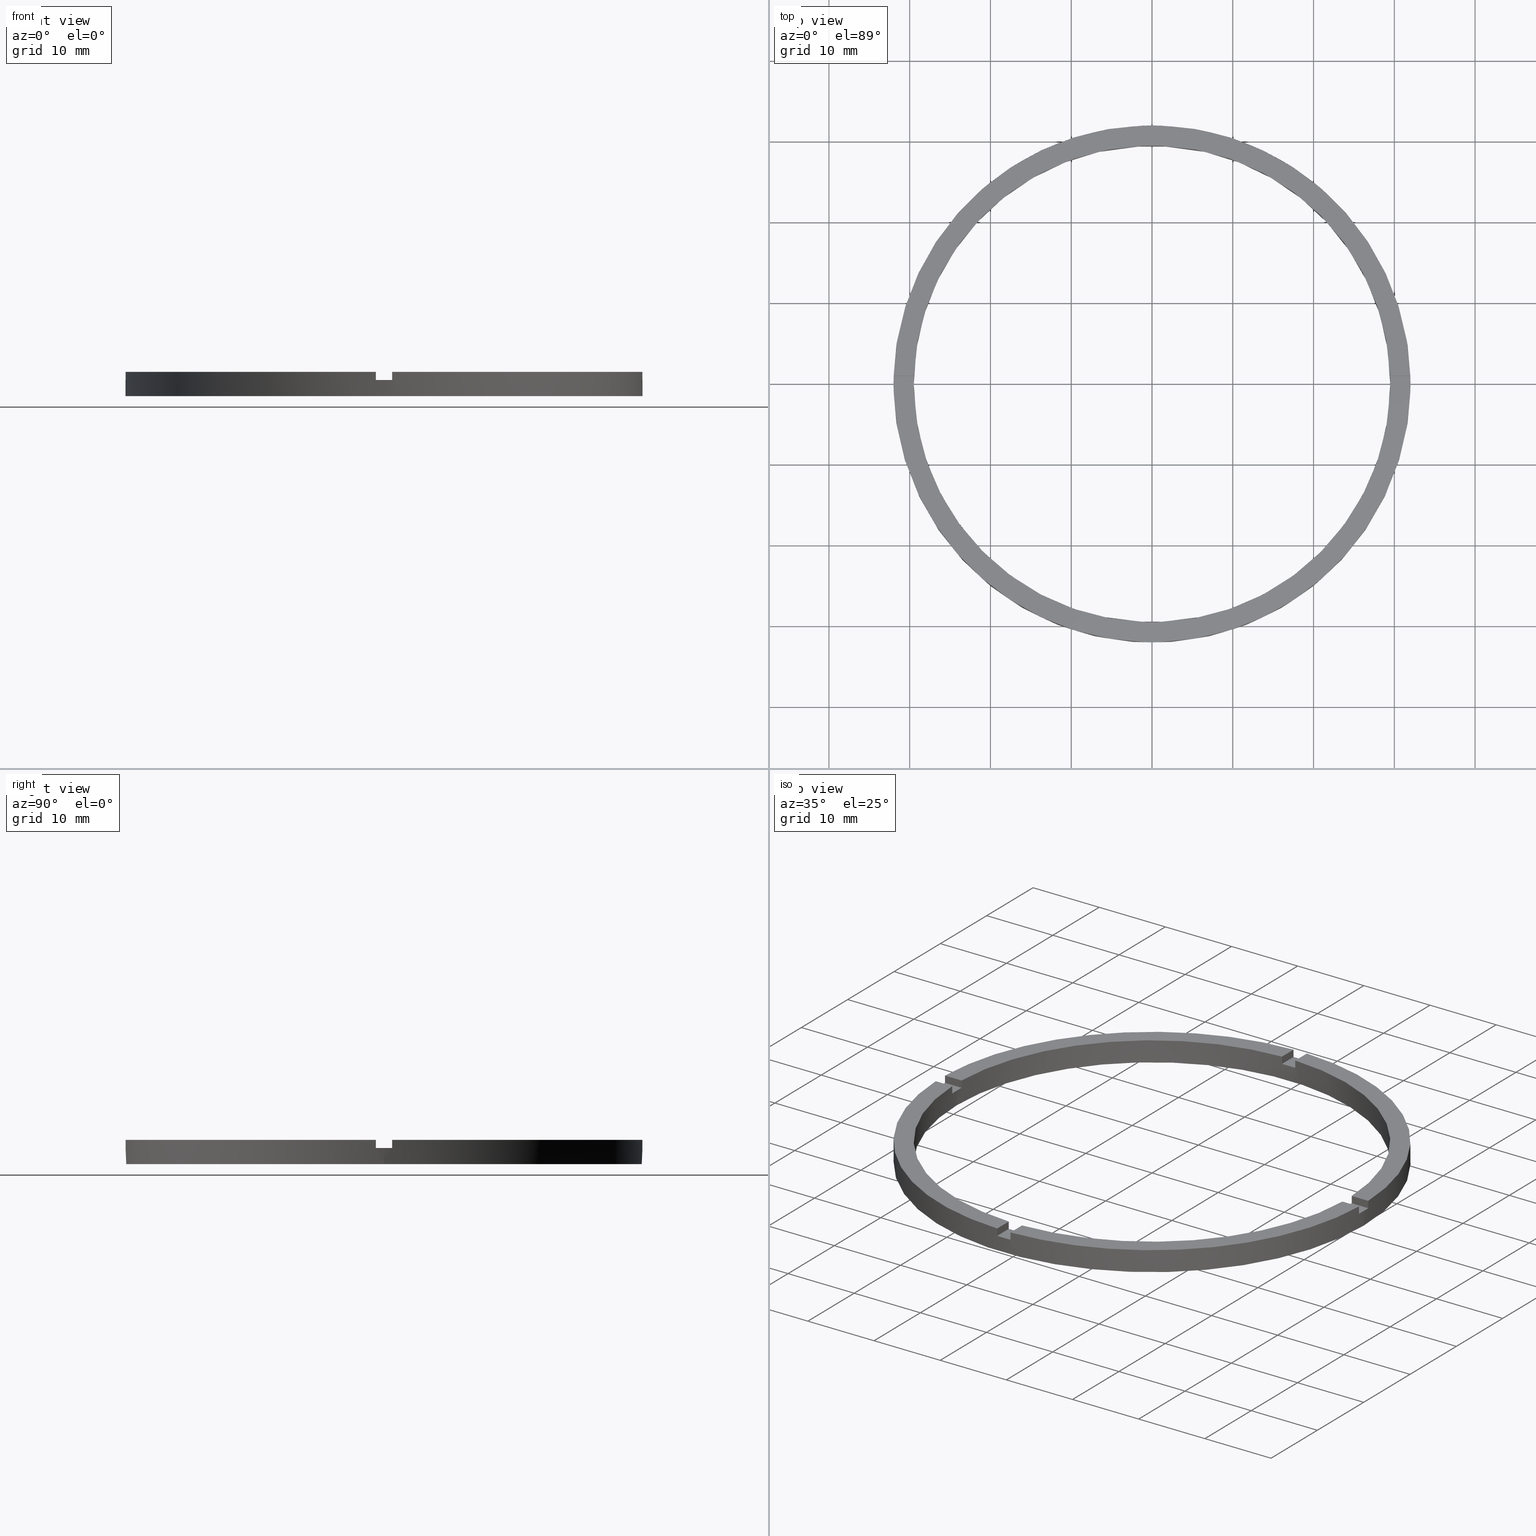
[diagram: canonical four-view strip — front | top / right | iso, engineering-drawing reading convention]
A machine part, canonical four-view strip (front | top / right | iso — engineering-drawing reading convention). The complete STEP part file that produces these views, byte-faithful:
ISO-10303-21;
HEADER;
FILE_DESCRIPTION (( 'STEP AP203' ),
    '1' );
FILE_NAME ('514133.step',
    '2024-12-26T02:40:41',
    ( 'MSI' ),
    ( '' ),
    'SwSTEP 2.0',
    'SolidWorks 2020',
    '' );
FILE_SCHEMA (( 'CONFIG_CONTROL_DESIGN' ));
ENDSEC;

DATA;
#1 = ORIENTED_EDGE ( 'NONE', *, *, #61, .T. ) ;
#2 = LINE ( 'NONE', #253, #783 ) ;
#3 = ORIENTED_EDGE ( 'NONE', *, *, #691, .T. ) ;
#4 = VERTEX_POINT ( 'NONE', #572 ) ;
#5 = VECTOR ( 'NONE', #86, 1000.000000000000000 ) ;
#6 = CC_DESIGN_SECURITY_CLASSIFICATION ( #77, ( #589 ) ) ;
#7 = ORIENTED_EDGE ( 'NONE', *, *, #714, .T. ) ;
#8 = ORIENTED_EDGE ( 'NONE', *, *, #365, .T. ) ;
#9 = DIRECTION ( 'NONE',  ( 1.000000000000000000, 0.000000000000000000, -0.000000000000000000 ) ) ;
#10 = VECTOR ( 'NONE', #338, 1000.000000000000000 ) ;
#11 = DIRECTION ( 'NONE',  ( 0.000000000000000000, 0.000000000000000000, 1.000000000000000000 ) ) ;
#12 = ORIENTED_EDGE ( 'NONE', *, *, #119, .F. ) ;
#13 = EDGE_LOOP ( 'NONE', ( #425, #191, #180, #406 ) ) ;
#14 = CYLINDRICAL_SURFACE ( 'NONE', #702, 32.00000000000000000 ) ;
#15 = ORIENTED_EDGE ( 'NONE', *, *, #356, .T. ) ;
#16 = PERSON_AND_ORGANIZATION_ROLE ( 'creator' ) ;
#17 = LINE ( 'NONE', #426, #536 ) ;
#18 = LINE ( 'NONE', #432, #5 ) ;
#19 = DIRECTION ( 'NONE',  ( 1.301042606982605074E-16, -1.000000000000000000, 0.000000000000000000 ) ) ;
#20 = CIRCLE ( 'NONE', #585, 32.00000000000000000 ) ;
#21 = AXIS2_PLACEMENT_3D ( 'NONE', #626, #538, #677 ) ;
#22 = DIRECTION ( 'NONE',  ( -0.000000000000000000, -0.000000000000000000, -1.000000000000000000 ) ) ;
#23 = APPROVAL ( #459, 'δָ��' ) ;
#24 = FACE_OUTER_BOUND ( 'NONE', #436, .T. ) ;
#25 = CC_DESIGN_PERSON_AND_ORGANIZATION_ASSIGNMENT ( #212, #159, ( #589 ) ) ;
#26 = FACE_OUTER_BOUND ( 'NONE', #214, .T. ) ;
#27 = AXIS2_PLACEMENT_3D ( 'NONE', #194, #377, #628 ) ;
#28 = EDGE_CURVE ( 'NONE', #492, #4, #402, .T. ) ;
#29 = CIRCLE ( 'NONE', #270, 29.50000000000000355 ) ;
#30 = ORIENTED_EDGE ( 'NONE', *, *, #242, .T. ) ;
#31 = DIRECTION ( 'NONE',  ( 1.951563910473908228E-16, -1.000000000000000000, 0.000000000000000000 ) ) ;
#32 = FACE_OUTER_BOUND ( 'NONE', #157, .T. ) ;
#33 = CIRCLE ( 'NONE', #21, 32.00000000000000000 ) ;
#34 = CARTESIAN_POINT ( 'NONE',  ( 0.9999999999998375744, -22.00000000000017764, 2.000000000000000000 ) ) ;
#35 = ORIENTED_EDGE ( 'NONE', *, *, #543, .T. ) ;
#36 = FACE_OUTER_BOUND ( 'NONE', #506, .T. ) ;
#37 = VERTEX_POINT ( 'NONE', #202 ) ;
#38 = FACE_OUTER_BOUND ( 'NONE', #382, .T. ) ;
#39 = EDGE_LOOP ( 'NONE', ( #252, #778, #754, #113, #294, #8 ) ) ;
#40 = FACE_OUTER_BOUND ( 'NONE', #480, .T. ) ;
#41 = DIRECTION ( 'NONE',  ( 0.000000000000000000, 0.000000000000000000, 1.000000000000000000 ) ) ;
#42 = CARTESIAN_POINT ( 'NONE',  ( 0.000000000000000000, 0.000000000000000000, 2.000000000000000000 ) ) ;
#43 = CARTESIAN_POINT ( 'NONE',  ( 0.9999999999999754641, 29.48304597561114093, 3.000000000000000000 ) ) ;
#44 = COORDINATED_UNIVERSAL_TIME_OFFSET ( 8, 0, .AHEAD. ) ;
#45 = PLANE ( 'NONE',  #297 ) ;
#46 = CARTESIAN_POINT ( 'NONE',  ( 0.9999999999998386846, -29.48304597561114448, 2.000000000000000000 ) ) ;
#47 = CALENDAR_DATE ( 2024, 26, 12 ) ;
#48 = EDGE_CURVE ( 'NONE', #556, #306, #429, .T. ) ;
#49 = DIRECTION ( 'NONE',  ( 0.000000000000000000, 0.000000000000000000, 1.000000000000000000 ) ) ;
#50 = CARTESIAN_POINT ( 'NONE',  ( 29.50000000000000355, 3.612708057484692393E-15, 2.000000000000000000 ) ) ;
#51 = DIRECTION ( 'NONE',  ( 1.000000000000000000, 0.000000000000000000, 0.000000000000000000 ) ) ;
#52 = CIRCLE ( 'NONE', #58, 29.50000000000000355 ) ;
#53 = LINE ( 'NONE', #724, #577 ) ;
#54 = DIRECTION ( 'NONE',  ( 1.000000000000000000, 0.000000000000000000, -0.000000000000000000 ) ) ;
#55 = DIRECTION ( 'NONE',  ( 1.000000000000000000, 0.000000000000000000, 0.000000000000000000 ) ) ;
#56 = FACE_OUTER_BOUND ( 'NONE', #160, .T. ) ;
#57 = CARTESIAN_POINT ( 'NONE',  ( 0.000000000000000000, 0.000000000000000000, 2.000000000000000000 ) ) ;
#58 = AXIS2_PLACEMENT_3D ( 'NONE', #82, #720, #192 ) ;
#59 = AXIS2_PLACEMENT_3D ( 'NONE', #688, #596, #766 ) ;
#60 = CARTESIAN_POINT ( 'NONE',  ( 0.000000000000000000, 0.000000000000000000, 2.000000000000000000 ) ) ;
#61 = EDGE_CURVE ( 'NONE', #210, #162, #693, .T. ) ;
#62 = DIRECTION ( 'NONE',  ( 1.000000000000000000, 0.000000000000000000, 0.000000000000000000 ) ) ;
#63 = EDGE_CURVE ( 'NONE', #523, #689, #697, .T. ) ;
#64 = DIRECTION ( 'NONE',  ( 1.000000000000000000, 0.000000000000000000, 0.000000000000000000 ) ) ;
#65 = CARTESIAN_POINT ( 'NONE',  ( 0.000000000000000000, 0.000000000000000000, 2.000000000000000000 ) ) ;
#66 = CARTESIAN_POINT ( 'NONE',  ( 0.000000000000000000, 0.000000000000000000, 3.000000000000000000 ) ) ;
#67 = AXIS2_PLACEMENT_3D ( 'NONE', #586, #49, #130 ) ;
#68 = DIRECTION ( 'NONE',  ( 0.000000000000000000, 0.000000000000000000, 1.000000000000000000 ) ) ;
#69 = DIRECTION ( 'NONE',  ( 0.000000000000000000, 0.000000000000000000, 1.000000000000000000 ) ) ;
#70 = ADVANCED_FACE ( 'NONE', ( #175 ), #139, .F. ) ;
#71 =( NAMED_UNIT ( * ) PLANE_ANGLE_UNIT ( ) SI_UNIT ( $, .RADIAN. ) );
#72 = DIRECTION ( 'NONE',  ( 1.000000000000000000, 0.000000000000000000, 0.000000000000000000 ) ) ;
#73 = PERSON ( 'δָ��', 'δָ��', 'δָ��', ('δָ��'), ('δָ��'), ('δָ��') ) ;
#74 = DIRECTION ( 'NONE',  ( 1.000000000000000000, 1.951563910473908228E-16, -0.000000000000000000 ) ) ;
#75 = EDGE_CURVE ( 'NONE', #743, #715, #147, .T. ) ;
#76 = ADVANCED_FACE ( 'NONE', ( #413 ), #576, .T. ) ;
#77 = SECURITY_CLASSIFICATION ( '', '', #599 ) ;
#78 = CARTESIAN_POINT ( 'NONE',  ( 0.9999999999999754641, 29.48304597561114093, 3.000000000000000000 ) ) ;
#79 = EDGE_CURVE ( 'NONE', #484, #120, #665, .T. ) ;
#80 = DIRECTION ( 'NONE',  ( 0.000000000000000000, 0.000000000000000000, 1.000000000000000000 ) ) ;
#81 = ADVANCED_FACE ( 'NONE', ( #668 ), #45, .F. ) ;
#82 = CARTESIAN_POINT ( 'NONE',  ( 0.000000000000000000, 0.000000000000000000, 3.000000000000000000 ) ) ;
#83 = CARTESIAN_POINT ( 'NONE',  ( 0.9999999999999754641, 22.00000000000000000, 3.000000000000000000 ) ) ;
#84 = EDGE_CURVE ( 'NONE', #210, #186, #141, .T. ) ;
#85 = CARTESIAN_POINT ( 'NONE',  ( 31.98437118343895591, 0.9999999999998414602, 2.000000000000000000 ) ) ;
#86 = DIRECTION ( 'NONE',  ( 1.000000000000000000, 6.505213034913022906E-17, 0.000000000000000000 ) ) ;
#87 = EDGE_CURVE ( 'NONE', #204, #669, #181, .T. ) ;
#88 = DIRECTION ( 'NONE',  ( -1.000000000000000000, 0.000000000000000000, 0.000000000000000000 ) ) ;
#89 = DIRECTION ( 'NONE',  ( 0.000000000000000000, 0.000000000000000000, 1.000000000000000000 ) ) ;
#90 = DIRECTION ( 'NONE',  ( -0.000000000000000000, -0.000000000000000000, -1.000000000000000000 ) ) ;
#91 = AXIS2_PLACEMENT_3D ( 'NONE', #748, #341, #441 ) ;
#92 = DIRECTION ( 'NONE',  ( 0.000000000000000000, -0.000000000000000000, 1.000000000000000000 ) ) ;
#93 = DIRECTION ( 'NONE',  ( 0.000000000000000000, 0.000000000000000000, 1.000000000000000000 ) ) ;
#94 = CARTESIAN_POINT ( 'NONE',  ( 0.000000000000000000, 0.000000000000000000, 3.000000000000000000 ) ) ;
#95 = DIRECTION ( 'NONE',  ( 0.000000000000000000, 0.000000000000000000, 1.000000000000000000 ) ) ;
#96 = EDGE_CURVE ( 'NONE', #698, #689, #439, .T. ) ;
#97 = AXIS2_PLACEMENT_3D ( 'NONE', #334, #363, #183 ) ;
#98 = VECTOR ( 'NONE', #117, 1000.000000000000000 ) ;
#99 = DIRECTION ( 'NONE',  ( 0.000000000000000000, 0.000000000000000000, 1.000000000000000000 ) ) ;
#100 = CIRCLE ( 'NONE', #643, 29.50000000000000355 ) ;
#101 = CC_DESIGN_PERSON_AND_ORGANIZATION_ASSIGNMENT ( #477, #249, ( #77 ) ) ;
#102 = AXIS2_PLACEMENT_3D ( 'NONE', #584, #632, #51 ) ;
#103 = DIRECTION ( 'NONE',  ( -1.000000000000000000, -6.505213034913022906E-17, 0.000000000000000000 ) ) ;
#104 = DIRECTION ( 'NONE',  ( 0.000000000000000000, 0.000000000000000000, 1.000000000000000000 ) ) ;
#105 = LINE ( 'NONE', #615, #98 ) ;
#106 = ORIENTED_EDGE ( 'NONE', *, *, #703, .F. ) ;
#107 = DIRECTION ( 'NONE',  ( 1.000000000000000000, 0.000000000000000000, 0.000000000000000000 ) ) ;
#108 = MECHANICAL_CONTEXT ( 'NONE', #227, 'mechanical' ) ;
#109 = EDGE_CURVE ( 'NONE', #168, #669, #187, .T. ) ;
#110 = EDGE_CURVE ( 'NONE', #162, #684, #443, .T. ) ;
#111 = DIRECTION ( 'NONE',  ( -0.000000000000000000, -0.000000000000000000, -1.000000000000000000 ) ) ;
#112 = CARTESIAN_POINT ( 'NONE',  ( 31.98437118343894170, -1.000000000000158540, 2.000000000000000000 ) ) ;
#113 = ORIENTED_EDGE ( 'NONE', *, *, #116, .F. ) ;
#114 = DIRECTION ( 'NONE',  ( -0.000000000000000000, -0.000000000000000000, -1.000000000000000000 ) ) ;
#115 = ORIENTED_EDGE ( 'NONE', *, *, #136, .T. ) ;
#116 = EDGE_CURVE ( 'NONE', #698, #669, #705, .T. ) ;
#117 = DIRECTION ( 'NONE',  ( -0.000000000000000000, -0.000000000000000000, -1.000000000000000000 ) ) ;
#118 = DIRECTION ( 'NONE',  ( 1.000000000000000000, 0.000000000000000000, 0.000000000000000000 ) ) ;
#119 = EDGE_CURVE ( 'NONE', #424, #526, #189, .T. ) ;
#120 = VERTEX_POINT ( 'NONE', #481 ) ;
#121 = EDGE_LOOP ( 'NONE', ( #245, #132, #173, #230 ) ) ;
#122 = ORIENTED_EDGE ( 'NONE', *, *, #597, .F. ) ;
#123 = AXIS2_PLACEMENT_3D ( 'NONE', #232, #321, #352 ) ;
#124 = DIRECTION ( 'NONE',  ( -1.951563910473908228E-16, 1.000000000000000000, 0.000000000000000000 ) ) ;
#125 = CARTESIAN_POINT ( 'NONE',  ( -1.000000000000024425, 22.00000000000000000, 2.000000000000000000 ) ) ;
#126 = CC_DESIGN_DATE_AND_TIME_ASSIGNMENT ( #561, #701, ( #503 ) ) ;
#127 = CC_DESIGN_DATE_AND_TIME_ASSIGNMENT ( #251, #327, ( #77 ) ) ;
#128 = AXIS2_PLACEMENT_3D ( 'NONE', #125, #442, #593 ) ;
#129 = EDGE_CURVE ( 'NONE', #182, #166, #709, .T. ) ;
#130 = DIRECTION ( 'NONE',  ( 1.000000000000000000, 0.000000000000000000, 0.000000000000000000 ) ) ;
#131 = EDGE_CURVE ( 'NONE', #302, #700, #627, .T. ) ;
#132 = ORIENTED_EDGE ( 'NONE', *, *, #131, .T. ) ;
#133 = CARTESIAN_POINT ( 'NONE',  ( 0.000000000000000000, 0.000000000000000000, 3.000000000000000000 ) ) ;
#134 = EDGE_LOOP ( 'NONE', ( #165, #456, #275, #35, #552, #518, #548, #277, #238, #505, #115, #773 ) ) ;
#135 = PLANE ( 'NONE',  #750 ) ;
#136 = EDGE_CURVE ( 'NONE', #544, #523, #105, .T. ) ;
#137 = FACE_OUTER_BOUND ( 'NONE', #39, .T. ) ;
#138 = ORIENTED_EDGE ( 'NONE', *, *, #129, .T. ) ;
#139 = CYLINDRICAL_SURFACE ( 'NONE', #525, 29.50000000000000355 ) ;
#140 = VERTEX_POINT ( 'NONE', #337 ) ;
#141 = LINE ( 'NONE', #398, #151 ) ;
#142 = DIRECTION ( 'NONE',  ( -6.505213034913022906E-17, 1.000000000000000000, 0.000000000000000000 ) ) ;
#143 = ORIENTED_EDGE ( 'NONE', *, *, #328, .T. ) ;
#144 = DIRECTION ( 'NONE',  ( 1.000000000000000000, 0.000000000000000000, 0.000000000000000000 ) ) ;
#145 = CARTESIAN_POINT ( 'NONE',  ( 0.000000000000000000, 0.000000000000000000, 3.000000000000000000 ) ) ;
#146 = DIRECTION ( 'NONE',  ( 1.000000000000000000, 0.000000000000000000, 0.000000000000000000 ) ) ;
#147 = CIRCLE ( 'NONE', #602, 29.50000000000000355 ) ;
#148 = ORIENTED_EDGE ( 'NONE', *, *, #365, .F. ) ;
#149 = VERTEX_POINT ( 'NONE', #612 ) ;
#150 = DIRECTION ( 'NONE',  ( -0.000000000000000000, -0.000000000000000000, -1.000000000000000000 ) ) ;
#151 = VECTOR ( 'NONE', #608, 1000.000000000000000 ) ;
#152 = PRODUCT_DEFINITION_SHAPE ( 'NONE', 'NONE',  #503 ) ;
#153 = PLANE ( 'NONE',  #590 ) ;
#154 = ORIENTED_EDGE ( 'NONE', *, *, #336, .F. ) ;
#155 = ADVANCED_FACE ( 'NONE', ( #620 ), #366, .F. ) ;
#156 = CARTESIAN_POINT ( 'NONE',  ( 0.000000000000000000, 0.000000000000000000, 2.000000000000000000 ) ) ;
#157 = EDGE_LOOP ( 'NONE', ( #177, #122, #138, #661, #659, #231, #143, #198, #1, #454, #528, #417 ) ) ;
#158 = ORIENTED_EDGE ( 'NONE', *, *, #571, .F. ) ;
#159 = PERSON_AND_ORGANIZATION_ROLE ( 'design_supplier' ) ;
#160 = EDGE_LOOP ( 'NONE', ( #148, #781, #674, #775 ) ) ;
#161 = PLANE ( 'NONE',  #27 ) ;
#162 = VERTEX_POINT ( 'NONE', #617 ) ;
#163 = DIRECTION ( 'NONE',  ( 1.000000000000000000, 0.000000000000000000, -0.000000000000000000 ) ) ;
#164 = AXIS2_PLACEMENT_3D ( 'NONE', #254, #415, #490 ) ;
#165 = ORIENTED_EDGE ( 'NONE', *, *, #96, .F. ) ;
#166 = VERTEX_POINT ( 'NONE', #738 ) ;
#167 = CYLINDRICAL_SURFACE ( 'NONE', #434, 32.00000000000000000 ) ;
#168 = VERTEX_POINT ( 'NONE', #85 ) ;
#169 = DIRECTION ( 'NONE',  ( 0.000000000000000000, 0.000000000000000000, 1.000000000000000000 ) ) ;
#170 = ORIENTED_EDGE ( 'NONE', *, *, #75, .T. ) ;
#171 = AXIS2_PLACEMENT_3D ( 'NONE', #223, #349, #144 ) ;
#172 = EDGE_CURVE ( 'NONE', #408, #686, #625, .T. ) ;
#173 = ORIENTED_EDGE ( 'NONE', *, *, #735, .F. ) ;
#174 = DIRECTION ( 'NONE',  ( -0.000000000000000000, -0.000000000000000000, -1.000000000000000000 ) ) ;
#175 = FACE_OUTER_BOUND ( 'NONE', #134, .T. ) ;
#176 = EDGE_CURVE ( 'NONE', #186, #140, #100, .T. ) ;
#177 = ORIENTED_EDGE ( 'NONE', *, *, #401, .F. ) ;
#178 = ADVANCED_FACE ( 'NONE', ( #360 ), #565, .T. ) ;
#179 = DIRECTION ( 'NONE',  ( 0.000000000000000000, 0.000000000000000000, 1.000000000000000000 ) ) ;
#180 = ORIENTED_EDGE ( 'NONE', *, *, #84, .F. ) ;
#181 = LINE ( 'NONE', #279, #445 ) ;
#182 = VERTEX_POINT ( 'NONE', #112 ) ;
#183 = DIRECTION ( 'NONE',  ( 1.000000000000000000, 6.505213034913022906E-17, 0.000000000000000000 ) ) ;
#184 = LINE ( 'NONE', #359, #694 ) ;
#185 = VECTOR ( 'NONE', #22, 1000.000000000000000 ) ;
#186 = VERTEX_POINT ( 'NONE', #771 ) ;
#187 = LINE ( 'NONE', #723, #437 ) ;
#188 = AXIS2_PLACEMENT_3D ( 'NONE', #654, #179, #267 ) ;
#189 = LINE ( 'NONE', #581, #446 ) ;
#190 = ADVANCED_FACE ( 'NONE', ( #361 ), #167, .T. ) ;
#191 = ORIENTED_EDGE ( 'NONE', *, *, #176, .F. ) ;
#192 = DIRECTION ( 'NONE',  ( 1.000000000000000000, 0.000000000000000000, 0.000000000000000000 ) ) ;
#193 = CARTESIAN_POINT ( 'NONE',  ( 0.9999999999998389066, -31.98437118343895591, 3.000000000000000000 ) ) ;
#194 = CARTESIAN_POINT ( 'NONE',  ( 0.000000000000000000, 0.000000000000000000, 3.000000000000000000 ) ) ;
#195 = EDGE_LOOP ( 'NONE', ( #428, #486, #464, #219, #499, #721, #444, #772, #396, #234, #389, #681 ) ) ;
#196 = CARTESIAN_POINT ( 'NONE',  ( 29.48304597561114448, 0.9999999999998412381, 2.000000000000000000 ) ) ;
#197 = DIRECTION ( 'NONE',  ( 1.000000000000000000, 0.000000000000000000, 0.000000000000000000 ) ) ;
#198 = ORIENTED_EDGE ( 'NONE', *, *, #379, .F. ) ;
#199 = EDGE_CURVE ( 'NONE', #224, #120, #427, .T. ) ;
#200 = ORIENTED_EDGE ( 'NONE', *, *, #110, .F. ) ;
#201 = EDGE_LOOP ( 'NONE', ( #747, #411, #269, #30 ) ) ;
#202 = CARTESIAN_POINT ( 'NONE',  ( -29.48304597561114093, 0.9999999999999746869, 3.000000000000000000 ) ) ;
#203 = DIRECTION ( 'NONE',  ( -0.000000000000000000, -0.000000000000000000, -1.000000000000000000 ) ) ;
#204 = VERTEX_POINT ( 'NONE', #350 ) ;
#205 = CARTESIAN_POINT ( 'NONE',  ( 21.99999999999999645, 0.9999999999998409050, 2.000000000000000000 ) ) ;
#206 = VERTEX_POINT ( 'NONE', #385 ) ;
#207 = DIRECTION ( 'NONE',  ( -0.000000000000000000, -0.000000000000000000, -1.000000000000000000 ) ) ;
#208 = CIRCLE ( 'NONE', #339, 29.50000000000000355 ) ;
#209 = VECTOR ( 'NONE', #394, 1000.000000000000000 ) ;
#210 = VERTEX_POINT ( 'NONE', #326 ) ;
#211 = AXIS2_PLACEMENT_3D ( 'NONE', #635, #348, #591 ) ;
#212 = PERSON_AND_ORGANIZATION ( #73, #566 ) ;
#213 = CARTESIAN_POINT ( 'NONE',  ( 29.48304597561113383, -1.000000000000158762, 3.000000000000000000 ) ) ;
#214 = EDGE_LOOP ( 'NONE', ( #438, #731, #222, #226, #420, #704, #650, #470, #170, #228, #663, #692 ) ) ;
#215 = CARTESIAN_POINT ( 'NONE',  ( 0.9999999999999754641, 31.98437118343894880, 2.000000000000000000 ) ) ;
#216 = CALENDAR_DATE ( 2024, 26, 12 ) ;
#217 = EDGE_CURVE ( 'NONE', #559, #37, #184, .T. ) ;
#218 = LOCAL_TIME ( 10, 40, 41.00000000000000000, #504 ) ;
#219 = ORIENTED_EDGE ( 'NONE', *, *, #616, .F. ) ;
#220 = MANIFOLD_SOLID_BREP ( '�г�-����1', #656 ) ;
#221 = DIRECTION ( 'NONE',  ( 0.000000000000000000, 0.000000000000000000, 1.000000000000000000 ) ) ;
#222 = ORIENTED_EDGE ( 'NONE', *, *, #63, .F. ) ;
#223 = CARTESIAN_POINT ( 'NONE',  ( 0.000000000000000000, 0.000000000000000000, 0.000000000000000000 ) ) ;
#224 = VERTEX_POINT ( 'NONE', #225 ) ;
#225 = CARTESIAN_POINT ( 'NONE',  ( -1.000000000000024425, 31.98437118343894880, 2.000000000000000000 ) ) ;
#226 = ORIENTED_EDGE ( 'NONE', *, *, #136, .F. ) ;
#227 = APPLICATION_CONTEXT ( 'configuration controlled 3d designs of mechanical parts and assemblies' ) ;
#228 = ORIENTED_EDGE ( 'NONE', *, *, #614, .F. ) ;
#229 = CARTESIAN_POINT ( 'NONE',  ( 32.00000000000000000, 3.918869757271530263E-15, 3.000000000000000000 ) ) ;
#230 = ORIENTED_EDGE ( 'NONE', *, *, #256, .F. ) ;
#231 = ORIENTED_EDGE ( 'NONE', *, *, #48, .F. ) ;
#232 = CARTESIAN_POINT ( 'NONE',  ( 0.000000000000000000, 0.000000000000000000, 0.000000000000000000 ) ) ;
#233 = AXIS2_PLACEMENT_3D ( 'NONE', #344, #431, #521 ) ;
#234 = ORIENTED_EDGE ( 'NONE', *, *, #555, .T. ) ;
#235 = ORIENTED_EDGE ( 'NONE', *, *, #28, .T. ) ;
#236 = VECTOR ( 'NONE', #298, 1000.000000000000000 ) ;
#237 = COORDINATED_UNIVERSAL_TIME_OFFSET ( 8, 0, .AHEAD. ) ;
#238 = ORIENTED_EDGE ( 'NONE', *, *, #217, .F. ) ;
#239 = VECTOR ( 'NONE', #554, 1000.000000000000000 ) ;
#240 = CALENDAR_DATE ( 2024, 26, 12 ) ;
#241 = ORIENTED_EDGE ( 'NONE', *, *, #63, .T. ) ;
#242 = EDGE_CURVE ( 'NONE', #743, #556, #435, .T. ) ;
#243 = CARTESIAN_POINT ( 'NONE',  ( 0.9999999999999754641, 22.00000000000000000, 2.000000000000000000 ) ) ;
#244 = ORIENTED_EDGE ( 'NONE', *, *, #310, .F. ) ;
#245 = ORIENTED_EDGE ( 'NONE', *, *, #714, .F. ) ;
#246 = CARTESIAN_POINT ( 'NONE',  ( 0.9999999999998389066, -31.98437118343895591, 2.000000000000000000 ) ) ;
#247 = ORIENTED_EDGE ( 'NONE', *, *, #421, .T. ) ;
#248 = ORIENTED_EDGE ( 'NONE', *, *, #217, .T. ) ;
#249 = PERSON_AND_ORGANIZATION_ROLE ( 'classification_officer' ) ;
#250 = ADVANCED_FACE ( 'NONE', ( #137 ), #483, .T. ) ;
#251 = DATE_AND_TIME ( #468, #769 ) ;
#252 = ORIENTED_EDGE ( 'NONE', *, *, #597, .T. ) ;
#253 = CARTESIAN_POINT ( 'NONE',  ( -29.48304597561113738, -1.000000000000025313, 3.000000000000000000 ) ) ;
#254 = CARTESIAN_POINT ( 'NONE',  ( 0.000000000000000000, 0.000000000000000000, 2.000000000000000000 ) ) ;
#255 = DATE_AND_TIME ( #216, #509 ) ;
#256 = EDGE_CURVE ( 'NONE', #484, #37, #722, .T. ) ;
#257 = CARTESIAN_POINT ( 'NONE',  ( 31.98437118343894170, -1.000000000000158540, 3.000000000000000000 ) ) ;
#258 = ORIENTED_EDGE ( 'NONE', *, *, #84, .T. ) ;
#259 = ADVANCED_FACE ( 'NONE', ( #463, #725 ), #651, .F. ) ;
#260 = PERSON_AND_ORGANIZATION ( #73, #566 ) ;
#261 = ORIENTED_EDGE ( 'NONE', *, *, #199, .F. ) ;
#262 = DIRECTION ( 'NONE',  ( -1.000000000000000000, 0.000000000000000000, 0.000000000000000000 ) ) ;
#263 = VECTOR ( 'NONE', #207, 1000.000000000000000 ) ;
#264 = AXIS2_PLACEMENT_3D ( 'NONE', #640, #99, #146 ) ;
#265 = VECTOR ( 'NONE', #685, 1000.000000000000000 ) ;
#266 = VECTOR ( 'NONE', #636, 1000.000000000000000 ) ;
#267 = DIRECTION ( 'NONE',  ( 1.000000000000000000, 0.000000000000000000, 0.000000000000000000 ) ) ;
#268 = ORIENTED_EDGE ( 'NONE', *, *, #735, .T. ) ;
#269 = ORIENTED_EDGE ( 'NONE', *, *, #75, .F. ) ;
#270 = AXIS2_PLACEMENT_3D ( 'NONE', #347, #757, #55 ) ;
#271 = LINE ( 'NONE', #378, #529 ) ;
#272 = VERTEX_POINT ( 'NONE', #557 ) ;
#273 = CIRCLE ( 'NONE', #59, 29.50000000000000355 ) ;
#274 = ORIENTED_EDGE ( 'NONE', *, *, #531, .T. ) ;
#275 = ORIENTED_EDGE ( 'NONE', *, *, #87, .F. ) ;
#276 = LINE ( 'NONE', #83, #287 ) ;
#277 = ORIENTED_EDGE ( 'NONE', *, *, #256, .T. ) ;
#278 = FACE_OUTER_BOUND ( 'NONE', #753, .T. ) ;
#279 = CARTESIAN_POINT ( 'NONE',  ( 29.48304597561114448, 0.9999999999998412381, 3.000000000000000000 ) ) ;
#280 = VERTEX_POINT ( 'NONE', #642 ) ;
#281 = DESIGN_CONTEXT ( 'detailed design', #386, 'design' ) ;
#282 = CYLINDRICAL_SURFACE ( 'NONE', #412, 29.50000000000000355 ) ;
#283 = LINE ( 'NONE', #522, #534 ) ;
#284 = PRODUCT ( '514133', '514133', '', ( #108 ) ) ;
#285 = CIRCLE ( 'NONE', #744, 32.00000000000000000 ) ;
#286 = EDGE_CURVE ( 'NONE', #544, #684, #208, .T. ) ;
#287 = VECTOR ( 'NONE', #622, 1000.000000000000000 ) ;
#288 = DIRECTION ( 'NONE',  ( -0.000000000000000000, -1.000000000000000000, -0.000000000000000000 ) ) ;
#289 = CARTESIAN_POINT ( 'NONE',  ( -29.50000000000000355, 0.000000000000000000, 0.000000000000000000 ) ) ;
#290 = FACE_OUTER_BOUND ( 'NONE', #121, .T. ) ;
#291 = VECTOR ( 'NONE', #706, 1000.000000000000000 ) ;
#292 = LINE ( 'NONE', #368, #265 ) ;
#293 = CARTESIAN_POINT ( 'NONE',  ( 0.000000000000000000, 0.000000000000000000, 3.000000000000000000 ) ) ;
#294 = ORIENTED_EDGE ( 'NONE', *, *, #580, .F. ) ;
#295 = FACE_OUTER_BOUND ( 'NONE', #712, .T. ) ;
#296 = VECTOR ( 'NONE', #440, 1000.000000000000000 ) ;
#297 = AXIS2_PLACEMENT_3D ( 'NONE', #568, #124, #664 ) ;
#298 = DIRECTION ( 'NONE',  ( 0.000000000000000000, 0.000000000000000000, 1.000000000000000000 ) ) ;
#299 = CIRCLE ( 'NONE', #507, 32.00000000000000000 ) ;
#300 = CARTESIAN_POINT ( 'NONE',  ( 0.000000000000000000, 0.000000000000000000, 2.000000000000000000 ) ) ;
#301 = CARTESIAN_POINT ( 'NONE',  ( -1.000000000000162537, -22.00000000000017764, 3.000000000000000000 ) ) ;
#302 = VERTEX_POINT ( 'NONE', #716 ) ;
#303 = LINE ( 'NONE', #384, #553 ) ;
#304 = LINE ( 'NONE', #587, #779 ) ;
#305 = LOCAL_TIME ( 10, 40, 41.00000000000000000, #570 ) ;
#306 = VERTEX_POINT ( 'NONE', #246 ) ;
#307 = LOCAL_TIME ( 10, 40, 41.00000000000000000, #44 ) ;
#308 = PERSON_AND_ORGANIZATION ( #73, #566 ) ;
#309 = CARTESIAN_POINT ( 'NONE',  ( 21.99999999999999645, -1.000000000000159206, 2.000000000000000000 ) ) ;
#310 = EDGE_CURVE ( 'NONE', #648, #272, #727, .T. ) ;
#311 = PERSON_AND_ORGANIZATION ( #73, #566 ) ;
#312 = PERSON_AND_ORGANIZATION ( #73, #566 ) ;
#313 = AXIS2_PLACEMENT_3D ( 'NONE', #94, #595, #764 ) ;
#314 = DIRECTION ( 'NONE',  ( 1.000000000000000000, 0.000000000000000000, 0.000000000000000000 ) ) ;
#315 = DATE_AND_TIME ( #564, #307 ) ;
#316 = DIRECTION ( 'NONE',  ( -1.000000000000000000, -1.301042606982605074E-16, 0.000000000000000000 ) ) ;
#317 = APPROVAL ( #647, 'δָ��' ) ;
#318 = PERSON_AND_ORGANIZATION_ROLE ( 'design_owner' ) ;
#319 = CARTESIAN_POINT ( 'NONE',  ( 0.000000000000000000, 0.000000000000000000, 2.000000000000000000 ) ) ;
#320 = CARTESIAN_POINT ( 'NONE',  ( -32.00000000000000000, 0.000000000000000000, 3.000000000000000000 ) ) ;
#321 = DIRECTION ( 'NONE',  ( 0.000000000000000000, 0.000000000000000000, 1.000000000000000000 ) ) ;
#322 = LINE ( 'NONE', #78, #578 ) ;
#323 = VECTOR ( 'NONE', #613, 1000.000000000000000 ) ;
#324 = DIRECTION ( 'NONE',  ( 1.000000000000000000, -0.000000000000000000, 0.000000000000000000 ) ) ;
#325 = EDGE_CURVE ( 'NONE', #424, #120, #465, .T. ) ;
#326 = CARTESIAN_POINT ( 'NONE',  ( -31.98437118343894880, -1.000000000000025757, 3.000000000000000000 ) ) ;
#327 = DATE_TIME_ROLE ( 'classification_date' ) ;
#328 = EDGE_CURVE ( 'NONE', #556, #206, #728, .T. ) ;
#329 = PLANE ( 'NONE',  #741 ) ;
#330 = ADVANCED_FACE ( 'NONE', ( #56 ), #657, .F. ) ;
#331 = DIRECTION ( 'NONE',  ( 0.000000000000000000, 0.000000000000000000, 1.000000000000000000 ) ) ;
#332 = AXIS2_PLACEMENT_3D ( 'NONE', #145, #690, #403 ) ;
#333 = CARTESIAN_POINT ( 'NONE',  ( 0.000000000000000000, 0.000000000000000000, 2.000000000000000000 ) ) ;
#334 = CARTESIAN_POINT ( 'NONE',  ( 21.99999999999999645, -1.000000000000159206, 2.000000000000000000 ) ) ;
#335 = DIRECTION ( 'NONE',  ( 0.000000000000000000, 1.000000000000000000, 0.000000000000000000 ) ) ;
#336 = EDGE_CURVE ( 'NONE', #492, #700, #53, .T. ) ;
#337 = CARTESIAN_POINT ( 'NONE',  ( -1.000000000000161426, -29.48304597561113383, 3.000000000000000000 ) ) ;
#338 = DIRECTION ( 'NONE',  ( -1.000000000000000000, -1.951563910473908228E-16, 0.000000000000000000 ) ) ;
#339 = AXIS2_PLACEMENT_3D ( 'NONE', #156, #69, #107 ) ;
#340 =( GEOMETRIC_REPRESENTATION_CONTEXT ( 3 ) GLOBAL_UNCERTAINTY_ASSIGNED_CONTEXT ( ( #624 ) ) GLOBAL_UNIT_ASSIGNED_CONTEXT ( ( #462, #71, #353 ) ) REPRESENTATION_CONTEXT ( 'NONE', 'WORKASPACE' ) );
#341 = DIRECTION ( 'NONE',  ( -0.000000000000000000, 0.000000000000000000, 1.000000000000000000 ) ) ;
#342 = CARTESIAN_POINT ( 'NONE',  ( -31.98437118343894880, 0.9999999999999742428, 3.000000000000000000 ) ) ;
#343 = AXIS2_PLACEMENT_3D ( 'NONE', #65, #104, #118 ) ;
#344 = CARTESIAN_POINT ( 'NONE',  ( 0.000000000000000000, 0.000000000000000000, 0.000000000000000000 ) ) ;
#345 = DIRECTION ( 'NONE',  ( 1.000000000000000000, 0.000000000000000000, -0.000000000000000000 ) ) ;
#346 = DIRECTION ( 'NONE',  ( 0.000000000000000000, 0.000000000000000000, 1.000000000000000000 ) ) ;
#347 = CARTESIAN_POINT ( 'NONE',  ( 0.000000000000000000, 0.000000000000000000, 3.000000000000000000 ) ) ;
#348 = DIRECTION ( 'NONE',  ( 0.000000000000000000, 0.000000000000000000, 1.000000000000000000 ) ) ;
#349 = DIRECTION ( 'NONE',  ( 0.000000000000000000, 0.000000000000000000, 1.000000000000000000 ) ) ;
#350 = CARTESIAN_POINT ( 'NONE',  ( 29.48304597561114448, 0.9999999999998412381, 3.000000000000000000 ) ) ;
#351 = EDGE_CURVE ( 'NONE', #272, #482, #52, .T. ) ;
#352 = DIRECTION ( 'NONE',  ( 1.000000000000000000, 0.000000000000000000, -0.000000000000000000 ) ) ;
#353 =( NAMED_UNIT ( * ) SI_UNIT ( $, .STERADIAN. ) SOLID_ANGLE_UNIT ( ) );
#354 = DIRECTION ( 'NONE',  ( 0.000000000000000000, 0.000000000000000000, -1.000000000000000000 ) ) ;
#355 = CARTESIAN_POINT ( 'NONE',  ( 0.9999999999998375744, -22.00000000000017764, 3.000000000000000000 ) ) ;
#356 = EDGE_CURVE ( 'NONE', #424, #762, #322, .T. ) ;
#357 = EDGE_CURVE ( 'NONE', #306, #715, #752, .T. ) ;
#358 = EDGE_CURVE ( 'NONE', #149, #482, #758, .T. ) ;
#359 = CARTESIAN_POINT ( 'NONE',  ( -29.48304597561114093, 0.9999999999999746869, 3.000000000000000000 ) ) ;
#360 = FACE_OUTER_BOUND ( 'NONE', #760, .T. ) ;
#361 = FACE_OUTER_BOUND ( 'NONE', #195, .T. ) ;
#362 = AXIS2_PLACEMENT_3D ( 'NONE', #729, #31, #582 ) ;
#363 = DIRECTION ( 'NONE',  ( 6.505213034913022906E-17, -1.000000000000000000, 0.000000000000000000 ) ) ;
#364 = VECTOR ( 'NONE', #331, 1000.000000000000000 ) ;
#365 = EDGE_CURVE ( 'NONE', #149, #182, #495, .T. ) ;
#366 = PLANE ( 'NONE',  #362 ) ;
#367 = CARTESIAN_POINT ( 'NONE',  ( -22.00000000000018119, 0.9999999999999761302, 3.000000000000000000 ) ) ;
#368 = CARTESIAN_POINT ( 'NONE',  ( 31.98437118343895591, 0.9999999999998414602, 3.000000000000000000 ) ) ;
#369 = EDGE_CURVE ( 'NONE', #408, #204, #498, .T. ) ;
#370 = CARTESIAN_POINT ( 'NONE',  ( -31.98437118343894880, -1.000000000000025757, 3.000000000000000000 ) ) ;
#371 = PLANE ( 'NONE',  #457 ) ;
#372 = CARTESIAN_POINT ( 'NONE',  ( -29.48304597561114093, 0.9999999999999746869, 2.000000000000000000 ) ) ;
#373 = PRODUCT_RELATED_PRODUCT_CATEGORY ( 'detail', '', ( #284 ) ) ;
#374 = APPROVAL ( #633, 'δָ��' ) ;
#375 = DIRECTION ( 'NONE',  ( 1.000000000000000000, 6.505213034913022906E-17, 0.000000000000000000 ) ) ;
#376 = DIRECTION ( 'NONE',  ( -0.000000000000000000, 0.000000000000000000, 1.000000000000000000 ) ) ;
#377 = DIRECTION ( 'NONE',  ( 0.000000000000000000, 0.000000000000000000, 1.000000000000000000 ) ) ;
#378 = CARTESIAN_POINT ( 'NONE',  ( 0.9999999999999754641, 31.98437118343894880, 3.000000000000000000 ) ) ;
#379 = EDGE_CURVE ( 'NONE', #210, #206, #20, .T. ) ;
#380 = CARTESIAN_POINT ( 'NONE',  ( -1.000000000000161204, -31.98437118343894170, 2.000000000000000000 ) ) ;
#381 = EDGE_CURVE ( 'NONE', #689, #523, #542, .T. ) ;
#382 = EDGE_LOOP ( 'NONE', ( #418, #274, #3, #497 ) ) ;
#383 = DIRECTION ( 'NONE',  ( 0.000000000000000000, 0.000000000000000000, 1.000000000000000000 ) ) ;
#384 = CARTESIAN_POINT ( 'NONE',  ( 0.9999999999998386846, -29.48304597561114448, 3.000000000000000000 ) ) ;
#385 = CARTESIAN_POINT ( 'NONE',  ( -1.000000000000161204, -31.98437118343894170, 3.000000000000000000 ) ) ;
#386 = APPLICATION_CONTEXT ( 'configuration controlled 3d designs of mechanical parts and assemblies' ) ;
#387 = AXIS2_PLACEMENT_3D ( 'NONE', #699, #609, #163 ) ;
#388 = DIRECTION ( 'NONE',  ( 0.000000000000000000, 0.000000000000000000, 1.000000000000000000 ) ) ;
#389 = ORIENTED_EDGE ( 'NONE', *, *, #172, .F. ) ;
#390 = APPLICATION_PROTOCOL_DEFINITION ( 'international standard', 'config_control_design', 1994, #227 ) ;
#391 = ADVANCED_FACE ( 'NONE', ( #295 ), #450, .F. ) ;
#392 = VERTEX_POINT ( 'NONE', #447 ) ;
#393 = CARTESIAN_POINT ( 'NONE',  ( 29.48304597561113383, -1.000000000000158762, 3.000000000000000000 ) ) ;
#394 = DIRECTION ( 'NONE',  ( -1.301042606982605074E-16, 1.000000000000000000, -0.000000000000000000 ) ) ;
#395 = ORIENTED_EDGE ( 'NONE', *, *, #543, .F. ) ;
#396 = ORIENTED_EDGE ( 'NONE', *, *, #761, .F. ) ;
#397 = EDGE_CURVE ( 'NONE', #4, #162, #33, .T. ) ;
#398 = CARTESIAN_POINT ( 'NONE',  ( -22.00000000000018119, -1.000000000000023981, 3.000000000000000000 ) ) ;
#399 = ADVANCED_FACE ( 'NONE', ( #36 ), #755, .T. ) ;
#400 = CARTESIAN_POINT ( 'NONE',  ( 0.9999999999998375744, -22.00000000000017764, 2.000000000000000000 ) ) ;
#401 = EDGE_CURVE ( 'NONE', #280, #392, #545, .T. ) ;
#402 = CIRCLE ( 'NONE', #67, 32.00000000000000000 ) ;
#403 = DIRECTION ( 'NONE',  ( 1.000000000000000000, 0.000000000000000000, -0.000000000000000000 ) ) ;
#404 = VECTOR ( 'NONE', #114, 1000.000000000000000 ) ;
#405 = EDGE_LOOP ( 'NONE', ( #106, #248, #268, #154 ) ) ;
#406 = ORIENTED_EDGE ( 'NONE', *, *, #379, .T. ) ;
#407 = CARTESIAN_POINT ( 'NONE',  ( -22.00000000000018119, -1.000000000000023981, 2.000000000000000000 ) ) ;
#408 = VERTEX_POINT ( 'NONE', #532 ) ;
#409 = ADVANCED_FACE ( 'NONE', ( #290 ), #683, .T. ) ;
#410 = CARTESIAN_POINT ( 'NONE',  ( -1.000000000000162537, -22.00000000000017764, 2.000000000000000000 ) ) ;
#411 = ORIENTED_EDGE ( 'NONE', *, *, #357, .T. ) ;
#412 = AXIS2_PLACEMENT_3D ( 'NONE', #293, #90, #433 ) ;
#413 = FACE_OUTER_BOUND ( 'NONE', #653, .T. ) ;
#414 = CARTESIAN_POINT ( 'NONE',  ( 29.50000000000000355, 3.612708057484692393E-15, 3.000000000000000000 ) ) ;
#415 = DIRECTION ( 'NONE',  ( 0.000000000000000000, -0.000000000000000000, 1.000000000000000000 ) ) ;
#416 = ORIENTED_EDGE ( 'NONE', *, *, #61, .F. ) ;
#417 = ORIENTED_EDGE ( 'NONE', *, *, #567, .T. ) ;
#418 = ORIENTED_EDGE ( 'NONE', *, *, #242, .F. ) ;
#419 = DIRECTION ( 'NONE',  ( -1.000000000000000000, -6.505213034913022906E-17, -0.000000000000000000 ) ) ;
#420 = ORIENTED_EDGE ( 'NONE', *, *, #286, .T. ) ;
#421 = EDGE_CURVE ( 'NONE', #648, #166, #540, .T. ) ;
#422 = VECTOR ( 'NONE', #601, 1000.000000000000000 ) ;
#423 = VERTEX_POINT ( 'NONE', #770 ) ;
#424 = VERTEX_POINT ( 'NONE', #687 ) ;
#425 = ORIENTED_EDGE ( 'NONE', *, *, #691, .F. ) ;
#426 = CARTESIAN_POINT ( 'NONE',  ( -1.000000000000024425, 31.98437118343894880, 3.000000000000000000 ) ) ;
#427 = LINE ( 'NONE', #467, #422 ) ;
#428 = ORIENTED_EDGE ( 'NONE', *, *, #645, .F. ) ;
#429 = CIRCLE ( 'NONE', #91, 32.00000000000000000 ) ;
#430 = ORIENTED_EDGE ( 'NONE', *, *, #662, .F. ) ;
#431 = DIRECTION ( 'NONE',  ( 0.000000000000000000, 0.000000000000000000, 1.000000000000000000 ) ) ;
#432 = CARTESIAN_POINT ( 'NONE',  ( 21.99999999999999645, -1.000000000000159206, 3.000000000000000000 ) ) ;
#433 = DIRECTION ( 'NONE',  ( -1.000000000000000000, 0.000000000000000000, 0.000000000000000000 ) ) ;
#434 = AXIS2_PLACEMENT_3D ( 'NONE', #461, #174, #262 ) ;
#435 = LINE ( 'NONE', #410, #658 ) ;
#436 = EDGE_LOOP ( 'NONE', ( #12, #15, #489, #680 ) ) ;
#437 = VECTOR ( 'NONE', #419, 1000.000000000000000 ) ;
#438 = ORIENTED_EDGE ( 'NONE', *, *, #580, .T. ) ;
#439 = LINE ( 'NONE', #414, #185 ) ;
#440 = DIRECTION ( 'NONE',  ( -1.000000000000000000, -6.505213034913022906E-17, -0.000000000000000000 ) ) ;
#441 = DIRECTION ( 'NONE',  ( 1.000000000000000000, 0.000000000000000000, 0.000000000000000000 ) ) ;
#442 = DIRECTION ( 'NONE',  ( -1.000000000000000000, 0.000000000000000000, 0.000000000000000000 ) ) ;
#443 = LINE ( 'NONE', #407, #707 ) ;
#444 = ORIENTED_EDGE ( 'NONE', *, *, #131, .F. ) ;
#445 = VECTOR ( 'NONE', #111, 1000.000000000000000 ) ;
#446 = VECTOR ( 'NONE', #335, 1000.000000000000000 ) ;
#447 = CARTESIAN_POINT ( 'NONE',  ( 32.00000000000000000, 3.918869757271530263E-15, 0.000000000000000000 ) ) ;
#448 = CARTESIAN_POINT ( 'NONE',  ( 0.000000000000000000, 0.000000000000000000, 3.000000000000000000 ) ) ;
#449 = EDGE_CURVE ( 'NONE', #559, #544, #541, .T. ) ;
#450 = PLANE ( 'NONE',  #631 ) ;
#451 = DIRECTION ( 'NONE',  ( -0.000000000000000000, 0.000000000000000000, 1.000000000000000000 ) ) ;
#452 = AXIS2_PLACEMENT_3D ( 'NONE', #66, #606, #62 ) ;
#453 = CC_DESIGN_PERSON_AND_ORGANIZATION_ASSIGNMENT ( #311, #562, ( #503 ) ) ;
#454 = ORIENTED_EDGE ( 'NONE', *, *, #397, .F. ) ;
#455 = CC_DESIGN_PERSON_AND_ORGANIZATION_ASSIGNMENT ( #759, #16, ( #589 ) ) ;
#456 = ORIENTED_EDGE ( 'NONE', *, *, #116, .T. ) ;
#457 = AXIS2_PLACEMENT_3D ( 'NONE', #583, #89, #345 ) ;
#458 = DIRECTION ( 'NONE',  ( 1.301042606982605074E-16, -1.000000000000000000, 0.000000000000000000 ) ) ;
#459 = APPROVAL_STATUS ( 'not_yet_approved' ) ;
#460 = ORIENTED_EDGE ( 'NONE', *, *, #351, .F. ) ;
#461 = CARTESIAN_POINT ( 'NONE',  ( 0.000000000000000000, 0.000000000000000000, 3.000000000000000000 ) ) ;
#462 =( LENGTH_UNIT ( ) NAMED_UNIT ( * ) SI_UNIT ( .MILLI., .METRE. ) );
#463 = FACE_OUTER_BOUND ( 'NONE', #710, .T. ) ;
#464 = ORIENTED_EDGE ( 'NONE', *, *, #607, .T. ) ;
#465 = CIRCLE ( 'NONE', #164, 29.50000000000000355 ) ;
#466 = ADVANCED_FACE ( 'NONE', ( #558 ), #329, .F. ) ;
#467 = CARTESIAN_POINT ( 'NONE',  ( -1.000000000000024425, 22.00000000000000000, 2.000000000000000000 ) ) ;
#468 = CALENDAR_DATE ( 2024, 26, 12 ) ;
#469 = EDGE_CURVE ( 'NONE', #186, #684, #2, .T. ) ;
#470 = ORIENTED_EDGE ( 'NONE', *, *, #531, .F. ) ;
#471 = APPROVAL_ROLE ( '' ) ;
#472 = APPROVAL_DATE_TIME ( #255, #374 ) ;
#473 = DIRECTION ( 'NONE',  ( 1.000000000000000000, 0.000000000000000000, -0.000000000000000000 ) ) ;
#474 = DIRECTION ( 'NONE',  ( -0.000000000000000000, -0.000000000000000000, -1.000000000000000000 ) ) ;
#475 = APPROVAL_DATE_TIME ( #734, #317 ) ;
#476 = ADVANCED_FACE ( 'NONE', ( #24 ), #153, .F. ) ;
#477 = PERSON_AND_ORGANIZATION ( #73, #566 ) ;
#478 = EDGE_LOOP ( 'NONE', ( #258, #539, #200, #416 ) ) ;
#479 = ORIENTED_EDGE ( 'NONE', *, *, #607, .F. ) ;
#480 = EDGE_LOOP ( 'NONE', ( #430, #395, #733, #695 ) ) ;
#481 = CARTESIAN_POINT ( 'NONE',  ( -1.000000000000024425, 29.48304597561113738, 2.000000000000000000 ) ) ;
#482 = VERTEX_POINT ( 'NONE', #393 ) ;
#483 = PLANE ( 'NONE',  #387 ) ;
#484 = VERTEX_POINT ( 'NONE', #605 ) ;
#485 = PERSON_AND_ORGANIZATION ( #73, #566 ) ;
#486 = ORIENTED_EDGE ( 'NONE', *, *, #401, .T. ) ;
#487 = ADVANCED_FACE ( 'NONE', ( #40 ), #161, .T. ) ;
#488 = ORIENTED_EDGE ( 'NONE', *, *, #514, .F. ) ;
#489 = ORIENTED_EDGE ( 'NONE', *, *, #662, .T. ) ;
#490 = DIRECTION ( 'NONE',  ( 1.000000000000000000, 0.000000000000000000, 0.000000000000000000 ) ) ;
#491 = SHAPE_DEFINITION_REPRESENTATION ( #152, #619 ) ;
#492 = VERTEX_POINT ( 'NONE', #598 ) ;
#493 = CARTESIAN_POINT ( 'NONE',  ( 0.000000000000000000, 0.000000000000000000, 3.000000000000000000 ) ) ;
#494 = ORIENTED_EDGE ( 'NONE', *, *, #381, .T. ) ;
#495 = LINE ( 'NONE', #309, #767 ) ;
#496 = ORIENTED_EDGE ( 'NONE', *, *, #614, .T. ) ;
#497 = ORIENTED_EDGE ( 'NONE', *, *, #328, .F. ) ;
#498 = LINE ( 'NONE', #546, #296 ) ;
#499 = ORIENTED_EDGE ( 'NONE', *, *, #28, .F. ) ;
#500 = AXIS2_PLACEMENT_3D ( 'NONE', #60, #221, #314 ) ;
#501 = DIRECTION ( 'NONE',  ( 1.000000000000000000, 0.000000000000000000, 0.000000000000000000 ) ) ;
#502 = CARTESIAN_POINT ( 'NONE',  ( 0.000000000000000000, 0.000000000000000000, 2.000000000000000000 ) ) ;
#503 = PRODUCT_DEFINITION ( 'δ֪', '', #589, #281 ) ;
#504 = COORDINATED_UNIVERSAL_TIME_OFFSET ( 8, 0, .AHEAD. ) ;
#505 = ORIENTED_EDGE ( 'NONE', *, *, #449, .T. ) ;
#506 = EDGE_LOOP ( 'NONE', ( #235, #782, #639, #682, #513, #630 ) ) ;
#507 = AXIS2_PLACEMENT_3D ( 'NONE', #57, #95, #197 ) ;
#508 = ORIENTED_EDGE ( 'NONE', *, *, #119, .T. ) ;
#509 = LOCAL_TIME ( 10, 40, 41.00000000000000000, #237 ) ;
#510 = ORIENTED_EDGE ( 'NONE', *, *, #109, .F. ) ;
#511 = CARTESIAN_POINT ( 'NONE',  ( 0.000000000000000000, 0.000000000000000000, 3.000000000000000000 ) ) ;
#512 = CARTESIAN_POINT ( 'NONE',  ( 29.50000000000000355, 3.612708057484692393E-15, 0.000000000000000000 ) ) ;
#513 = ORIENTED_EDGE ( 'NONE', *, *, #449, .F. ) ;
#514 = EDGE_CURVE ( 'NONE', #408, #168, #292, .T. ) ;
#515 = LINE ( 'NONE', #301, #777 ) ;
#516 = ORIENTED_EDGE ( 'NONE', *, *, #369, .T. ) ;
#517 = FACE_OUTER_BOUND ( 'NONE', #13, .T. ) ;
#518 = ORIENTED_EDGE ( 'NONE', *, *, #325, .T. ) ;
#519 = LINE ( 'NONE', #367, #10 ) ;
#520 = CARTESIAN_POINT ( 'NONE',  ( 0.000000000000000000, 0.000000000000000000, 3.000000000000000000 ) ) ;
#521 = DIRECTION ( 'NONE',  ( 1.000000000000000000, 0.000000000000000000, 0.000000000000000000 ) ) ;
#522 = CARTESIAN_POINT ( 'NONE',  ( -22.00000000000018119, 0.9999999999999761302, 2.000000000000000000 ) ) ;
#523 = VERTEX_POINT ( 'NONE', #289 ) ;
#524 = CIRCLE ( 'NONE', #343, 32.00000000000000000 ) ;
#525 = AXIS2_PLACEMENT_3D ( 'NONE', #511, #671, #88 ) ;
#526 = VERTEX_POINT ( 'NONE', #215 ) ;
#527 = LINE ( 'NONE', #594, #549 ) ;
#528 = ORIENTED_EDGE ( 'NONE', *, *, #616, .T. ) ;
#529 = VECTOR ( 'NONE', #93, 1000.000000000000000 ) ;
#530 = LINE ( 'NONE', #320, #266 ) ;
#531 = EDGE_CURVE ( 'NONE', #743, #140, #527, .T. ) ;
#532 = CARTESIAN_POINT ( 'NONE',  ( 31.98437118343895591, 0.9999999999998414602, 3.000000000000000000 ) ) ;
#533 = DIRECTION ( 'NONE',  ( -1.000000000000000000, 0.000000000000000000, 0.000000000000000000 ) ) ;
#534 = VECTOR ( 'NONE', #730, 1000.000000000000000 ) ;
#535 = ORIENTED_EDGE ( 'NONE', *, *, #310, .T. ) ;
#536 = VECTOR ( 'NONE', #203, 1000.000000000000000 ) ;
#537 = FACE_OUTER_BOUND ( 'NONE', #201, .T. ) ;
#538 = DIRECTION ( 'NONE',  ( 0.000000000000000000, 0.000000000000000000, 1.000000000000000000 ) ) ;
#539 = ORIENTED_EDGE ( 'NONE', *, *, #469, .T. ) ;
#540 = CIRCLE ( 'NONE', #313, 32.00000000000000000 ) ;
#541 = CIRCLE ( 'NONE', #500, 29.50000000000000355 ) ;
#542 = CIRCLE ( 'NONE', #211, 29.50000000000000355 ) ;
#543 = EDGE_CURVE ( 'NONE', #204, #762, #29, .T. ) ;
#544 = VERTEX_POINT ( 'NONE', #679 ) ;
#545 = LINE ( 'NONE', #229, #291 ) ;
#546 = CARTESIAN_POINT ( 'NONE',  ( 21.99999999999999645, 0.9999999999998409050, 3.000000000000000000 ) ) ;
#547 = CIRCLE ( 'NONE', #102, 32.00000000000000000 ) ;
#548 = ORIENTED_EDGE ( 'NONE', *, *, #79, .F. ) ;
#549 = VECTOR ( 'NONE', #588, 1000.000000000000000 ) ;
#550 = CIRCLE ( 'NONE', #171, 32.00000000000000000 ) ;
#551 = CC_DESIGN_APPROVAL ( #317, ( #77 ) ) ;
#552 = ORIENTED_EDGE ( 'NONE', *, *, #356, .F. ) ;
#553 = VECTOR ( 'NONE', #150, 1000.000000000000000 ) ;
#554 = DIRECTION ( 'NONE',  ( -1.301042606982605074E-16, 1.000000000000000000, -0.000000000000000000 ) ) ;
#555 = EDGE_CURVE ( 'NONE', #526, #686, #271, .T. ) ;
#556 = VERTEX_POINT ( 'NONE', #380 ) ;
#557 = CARTESIAN_POINT ( 'NONE',  ( 0.9999999999998386846, -29.48304597561114448, 3.000000000000000000 ) ) ;
#558 = FACE_OUTER_BOUND ( 'NONE', #708, .T. ) ;
#559 = VERTEX_POINT ( 'NONE', #372 ) ;
#560 = ADVANCED_FACE ( 'NONE', ( #537 ), #135, .T. ) ;
#561 = DATE_AND_TIME ( #47, #305 ) ;
#562 = PERSON_AND_ORGANIZATION_ROLE ( 'creator' ) ;
#563 = ORIENTED_EDGE ( 'NONE', *, *, #79, .T. ) ;
#564 = CALENDAR_DATE ( 2024, 26, 12 ) ;
#565 = PLANE ( 'NONE',  #332 ) ;
#566 = ORGANIZATION ( 'δָ��', 'δָ��', '' ) ;
#567 = EDGE_CURVE ( 'NONE', #423, #392, #547, .T. ) ;
#568 = CARTESIAN_POINT ( 'NONE',  ( -22.00000000000018119, 0.9999999999999761302, 2.000000000000000000 ) ) ;
#569 = APPROVAL_PERSON_ORGANIZATION ( #312, #23, #644 ) ;
#570 = COORDINATED_UNIVERSAL_TIME_OFFSET ( 8, 0, .AHEAD. ) ;
#571 = EDGE_CURVE ( 'NONE', #648, #306, #774, .T. ) ;
#572 = CARTESIAN_POINT ( 'NONE',  ( -32.00000000000000000, 0.000000000000000000, 2.000000000000000000 ) ) ;
#573 = APPROVAL_DATE_TIME ( #315, #23 ) ;
#574 = ADVANCED_FACE ( 'NONE', ( #32 ), #14, .T. ) ;
#575 = AXIS2_PLACEMENT_3D ( 'NONE', #493, #80, #719 ) ;
#576 = PLANE ( 'NONE',  #776 ) ;
#577 = VECTOR ( 'NONE', #41, 1000.000000000000000 ) ;
#578 = VECTOR ( 'NONE', #655, 1000.000000000000000 ) ;
#579 = CARTESIAN_POINT ( 'NONE',  ( -1.000000000000161204, -31.98437118343894170, 3.000000000000000000 ) ) ;
#580 = EDGE_CURVE ( 'NONE', #149, #698, #273, .T. ) ;
#581 = CARTESIAN_POINT ( 'NONE',  ( 0.9999999999999754641, 22.00000000000000000, 2.000000000000000000 ) ) ;
#582 = DIRECTION ( 'NONE',  ( 1.000000000000000000, 1.951563910473908228E-16, 0.000000000000000000 ) ) ;
#583 = CARTESIAN_POINT ( 'NONE',  ( 0.000000000000000000, 0.000000000000000000, 3.000000000000000000 ) ) ;
#584 = CARTESIAN_POINT ( 'NONE',  ( 0.000000000000000000, 0.000000000000000000, 0.000000000000000000 ) ) ;
#585 = AXIS2_PLACEMENT_3D ( 'NONE', #520, #68, #64 ) ;
#586 = CARTESIAN_POINT ( 'NONE',  ( 0.000000000000000000, 0.000000000000000000, 2.000000000000000000 ) ) ;
#587 = CARTESIAN_POINT ( 'NONE',  ( -1.000000000000024425, 22.00000000000000000, 3.000000000000000000 ) ) ;
#588 = DIRECTION ( 'NONE',  ( 0.000000000000000000, 0.000000000000000000, 1.000000000000000000 ) ) ;
#589 = PRODUCT_DEFINITION_FORMATION_WITH_SPECIFIED_SOURCE ( '�κ�', '', #284, .NOT_KNOWN. ) ;
#590 = AXIS2_PLACEMENT_3D ( 'NONE', #243, #324, #354 ) ;
#591 = DIRECTION ( 'NONE',  ( 1.000000000000000000, 0.000000000000000000, 0.000000000000000000 ) ) ;
#592 = DIRECTION ( 'NONE',  ( 1.000000000000000000, 0.000000000000000000, 0.000000000000000000 ) ) ;
#593 = DIRECTION ( 'NONE',  ( 0.000000000000000000, 0.000000000000000000, 1.000000000000000000 ) ) ;
#594 = CARTESIAN_POINT ( 'NONE',  ( -1.000000000000161426, -29.48304597561113383, 3.000000000000000000 ) ) ;
#595 = DIRECTION ( 'NONE',  ( 0.000000000000000000, 0.000000000000000000, 1.000000000000000000 ) ) ;
#596 = DIRECTION ( 'NONE',  ( 0.000000000000000000, 0.000000000000000000, 1.000000000000000000 ) ) ;
#597 = EDGE_CURVE ( 'NONE', #182, #280, #299, .T. ) ;
#598 = CARTESIAN_POINT ( 'NONE',  ( -31.98437118343894880, 0.9999999999999742428, 2.000000000000000000 ) ) ;
#599 = SECURITY_CLASSIFICATION_LEVEL ( 'unclassified' ) ;
#600 = CARTESIAN_POINT ( 'NONE',  ( -1.000000000000162537, -22.00000000000017764, 2.000000000000000000 ) ) ;
#601 = DIRECTION ( 'NONE',  ( -0.000000000000000000, -1.000000000000000000, -0.000000000000000000 ) ) ;
#602 = AXIS2_PLACEMENT_3D ( 'NONE', #300, #376, #592 ) ;
#603 = APPLICATION_PROTOCOL_DEFINITION ( 'international standard', 'config_control_design', 1994, #386 ) ;
#604 = ADVANCED_FACE ( 'NONE', ( #26 ), #282, .F. ) ;
#605 = CARTESIAN_POINT ( 'NONE',  ( -1.000000000000024425, 29.48304597561113738, 3.000000000000000000 ) ) ;
#606 = DIRECTION ( 'NONE',  ( 0.000000000000000000, 0.000000000000000000, 1.000000000000000000 ) ) ;
#607 = EDGE_CURVE ( 'NONE', #392, #423, #550, .T. ) ;
#608 = DIRECTION ( 'NONE',  ( 1.000000000000000000, 1.951563910473908228E-16, -0.000000000000000000 ) ) ;
#609 = DIRECTION ( 'NONE',  ( 0.000000000000000000, 0.000000000000000000, 1.000000000000000000 ) ) ;
#610 = AXIS2_PLACEMENT_3D ( 'NONE', #319, #383, #54 ) ;
#611 = CC_DESIGN_APPROVAL ( #23, ( #503 ) ) ;
#612 = CARTESIAN_POINT ( 'NONE',  ( 29.48304597561113383, -1.000000000000158762, 2.000000000000000000 ) ) ;
#613 = DIRECTION ( 'NONE',  ( 0.000000000000000000, 0.000000000000000000, 1.000000000000000000 ) ) ;
#614 = EDGE_CURVE ( 'NONE', #272, #715, #303, .T. ) ;
#615 = CARTESIAN_POINT ( 'NONE',  ( -29.50000000000000355, 0.000000000000000000, 3.000000000000000000 ) ) ;
#616 = EDGE_CURVE ( 'NONE', #4, #423, #530, .T. ) ;
#617 = CARTESIAN_POINT ( 'NONE',  ( -31.98437118343894880, -1.000000000000025757, 2.000000000000000000 ) ) ;
#618 = PLANE ( 'NONE',  #128 ) ;
#619 = ADVANCED_BREP_SHAPE_REPRESENTATION ( '514133', ( #220, #264 ), #340 ) ;
#620 = FACE_OUTER_BOUND ( 'NONE', #478, .T. ) ;
#621 = DIRECTION ( 'NONE',  ( -0.000000000000000000, -0.000000000000000000, -1.000000000000000000 ) ) ;
#622 = DIRECTION ( 'NONE',  ( 0.000000000000000000, 1.000000000000000000, 0.000000000000000000 ) ) ;
#623 = DIRECTION ( 'NONE',  ( 1.000000000000000000, 0.000000000000000000, 0.000000000000000000 ) ) ;
#624 = UNCERTAINTY_MEASURE_WITH_UNIT (LENGTH_MEASURE( 1.000000000000000082E-05 ), #462, 'distance_accuracy_value', 'NONE');
#625 = CIRCLE ( 'NONE', #188, 32.00000000000000000 ) ;
#626 = CARTESIAN_POINT ( 'NONE',  ( 0.000000000000000000, 0.000000000000000000, 2.000000000000000000 ) ) ;
#627 = CIRCLE ( 'NONE', #575, 32.00000000000000000 ) ;
#628 = DIRECTION ( 'NONE',  ( 1.000000000000000000, 0.000000000000000000, -0.000000000000000000 ) ) ;
#629 = CARTESIAN_POINT ( 'NONE',  ( 0.9999999999998389066, -31.98437118343895591, 3.000000000000000000 ) ) ;
#630 = ORIENTED_EDGE ( 'NONE', *, *, #703, .T. ) ;
#631 = AXIS2_PLACEMENT_3D ( 'NONE', #205, #142, #103 ) ;
#632 = DIRECTION ( 'NONE',  ( 0.000000000000000000, 0.000000000000000000, 1.000000000000000000 ) ) ;
#633 = APPROVAL_STATUS ( 'not_yet_approved' ) ;
#634 = AXIS2_PLACEMENT_3D ( 'NONE', #600, #316, #458 ) ;
#635 = CARTESIAN_POINT ( 'NONE',  ( 0.000000000000000000, 0.000000000000000000, 0.000000000000000000 ) ) ;
#636 = DIRECTION ( 'NONE',  ( -0.000000000000000000, -0.000000000000000000, -1.000000000000000000 ) ) ;
#637 = ORIENTED_EDGE ( 'NONE', *, *, #652, .F. ) ;
#638 = CARTESIAN_POINT ( 'NONE',  ( 0.000000000000000000, 0.000000000000000000, 3.000000000000000000 ) ) ;
#639 = ORIENTED_EDGE ( 'NONE', *, *, #110, .T. ) ;
#640 = CARTESIAN_POINT ( 'NONE',  ( 0.000000000000000000, 0.000000000000000000, 0.000000000000000000 ) ) ;
#641 = ADVANCED_FACE ( 'NONE', ( #38 ), #780, .F. ) ;
#642 = CARTESIAN_POINT ( 'NONE',  ( 32.00000000000000000, 3.918869757271530263E-15, 2.000000000000000000 ) ) ;
#643 = AXIS2_PLACEMENT_3D ( 'NONE', #638, #388, #72 ) ;
#644 = APPROVAL_ROLE ( '' ) ;
#645 = EDGE_CURVE ( 'NONE', #280, #168, #524, .T. ) ;
#646 = DIRECTION ( 'NONE',  ( -1.301042606982605074E-16, 1.000000000000000000, 0.000000000000000000 ) ) ;
#647 = APPROVAL_STATUS ( 'not_yet_approved' ) ;
#648 = VERTEX_POINT ( 'NONE', #193 ) ;
#649 = DIRECTION ( 'NONE',  ( 0.000000000000000000, -0.000000000000000000, 1.000000000000000000 ) ) ;
#650 = ORIENTED_EDGE ( 'NONE', *, *, #176, .T. ) ;
#651 = PLANE ( 'NONE',  #123 ) ;
#652 = EDGE_CURVE ( 'NONE', #302, #224, #17, .T. ) ;
#653 = EDGE_LOOP ( 'NONE', ( #737, #763, #675, #508 ) ) ;
#654 = CARTESIAN_POINT ( 'NONE',  ( 0.000000000000000000, 0.000000000000000000, 3.000000000000000000 ) ) ;
#655 = DIRECTION ( 'NONE',  ( 0.000000000000000000, 0.000000000000000000, 1.000000000000000000 ) ) ;
#656 = CLOSED_SHELL ( 'NONE', ( #604, #190, #409, #487, #178, #726, #259, #574, #70, #155, #81, #399, #466, #641, #560, #391, #330, #250, #736, #476, #76 ) ) ;
#657 = PLANE ( 'NONE',  #97 ) ;
#658 = VECTOR ( 'NONE', #19, 1000.000000000000000 ) ;
#659 = ORIENTED_EDGE ( 'NONE', *, *, #571, .T. ) ;
#660 = AXIS2_PLACEMENT_3D ( 'NONE', #133, #346, #9 ) ;
#661 = ORIENTED_EDGE ( 'NONE', *, *, #421, .F. ) ;
#662 = EDGE_CURVE ( 'NONE', #762, #686, #276, .T. ) ;
#663 = ORIENTED_EDGE ( 'NONE', *, *, #351, .T. ) ;
#664 = DIRECTION ( 'NONE',  ( -1.000000000000000000, -1.951563910473908228E-16, 0.000000000000000000 ) ) ;
#665 = LINE ( 'NONE', #717, #404 ) ;
#666 = CARTESIAN_POINT ( 'NONE',  ( -1.000000000000161426, -29.48304597561113383, 2.000000000000000000 ) ) ;
#667 = DIRECTION ( 'NONE',  ( -0.000000000000000000, -0.000000000000000000, -1.000000000000000000 ) ) ;
#668 = FACE_OUTER_BOUND ( 'NONE', #405, .T. ) ;
#669 = VERTEX_POINT ( 'NONE', #196 ) ;
#670 = ORIENTED_EDGE ( 'NONE', *, *, #732, .F. ) ;
#671 = DIRECTION ( 'NONE',  ( -0.000000000000000000, -0.000000000000000000, -1.000000000000000000 ) ) ;
#672 = VECTOR ( 'NONE', #621, 1000.000000000000000 ) ;
#673 = CARTESIAN_POINT ( 'NONE',  ( -29.48304597561113738, -1.000000000000025313, 2.000000000000000000 ) ) ;
#674 = ORIENTED_EDGE ( 'NONE', *, *, #732, .T. ) ;
#675 = ORIENTED_EDGE ( 'NONE', *, *, #325, .F. ) ;
#676 = AXIS2_PLACEMENT_3D ( 'NONE', #42, #169, #501 ) ;
#677 = DIRECTION ( 'NONE',  ( 1.000000000000000000, 0.000000000000000000, 0.000000000000000000 ) ) ;
#678 = CARTESIAN_POINT ( 'NONE',  ( 0.9999999999999754641, 31.98437118343894880, 3.000000000000000000 ) ) ;
#679 = CARTESIAN_POINT ( 'NONE',  ( -29.50000000000000355, 0.000000000000000000, 2.000000000000000000 ) ) ;
#680 = ORIENTED_EDGE ( 'NONE', *, *, #555, .F. ) ;
#681 = ORIENTED_EDGE ( 'NONE', *, *, #514, .T. ) ;
#682 = ORIENTED_EDGE ( 'NONE', *, *, #286, .F. ) ;
#683 = PLANE ( 'NONE',  #660 ) ;
#684 = VERTEX_POINT ( 'NONE', #673 ) ;
#685 = DIRECTION ( 'NONE',  ( -0.000000000000000000, -0.000000000000000000, -1.000000000000000000 ) ) ;
#686 = VERTEX_POINT ( 'NONE', #678 ) ;
#687 = CARTESIAN_POINT ( 'NONE',  ( 0.9999999999999754641, 29.48304597561114093, 2.000000000000000000 ) ) ;
#688 = CARTESIAN_POINT ( 'NONE',  ( 0.000000000000000000, 0.000000000000000000, 2.000000000000000000 ) ) ;
#689 = VERTEX_POINT ( 'NONE', #512 ) ;
#690 = DIRECTION ( 'NONE',  ( 0.000000000000000000, 0.000000000000000000, 1.000000000000000000 ) ) ;
#691 = EDGE_CURVE ( 'NONE', #140, #206, #515, .T. ) ;
#692 = ORIENTED_EDGE ( 'NONE', *, *, #358, .F. ) ;
#693 = LINE ( 'NONE', #370, #672 ) ;
#694 = VECTOR ( 'NONE', #11, 1000.000000000000000 ) ;
#695 = ORIENTED_EDGE ( 'NONE', *, *, #172, .T. ) ;
#696 = CC_DESIGN_PERSON_AND_ORGANIZATION_ASSIGNMENT ( #308, #318, ( #284 ) ) ;
#697 = CIRCLE ( 'NONE', #233, 29.50000000000000355 ) ;
#698 = VERTEX_POINT ( 'NONE', #50 ) ;
#699 = CARTESIAN_POINT ( 'NONE',  ( 0.000000000000000000, 0.000000000000000000, 2.000000000000000000 ) ) ;
#700 = VERTEX_POINT ( 'NONE', #342 ) ;
#701 = DATE_TIME_ROLE ( 'creation_date' ) ;
#702 = AXIS2_PLACEMENT_3D ( 'NONE', #448, #667, #533 ) ;
#703 = EDGE_CURVE ( 'NONE', #559, #492, #283, .T. ) ;
#704 = ORIENTED_EDGE ( 'NONE', *, *, #469, .F. ) ;
#705 = CIRCLE ( 'NONE', #676, 29.50000000000000355 ) ;
#706 = DIRECTION ( 'NONE',  ( -0.000000000000000000, -0.000000000000000000, -1.000000000000000000 ) ) ;
#707 = VECTOR ( 'NONE', #74, 1000.000000000000000 ) ;
#708 = EDGE_LOOP ( 'NONE', ( #535, #496, #745, #158 ) ) ;
#709 = LINE ( 'NONE', #257, #364 ) ;
#710 = EDGE_LOOP ( 'NONE', ( #768, #479 ) ) ;
#711 = APPROVAL_ROLE ( '' ) ;
#712 = EDGE_LOOP ( 'NONE', ( #516, #718, #510, #488 ) ) ;
#713 = DIRECTION ( 'NONE',  ( 1.000000000000000000, 1.301042606982605074E-16, 0.000000000000000000 ) ) ;
#714 = EDGE_CURVE ( 'NONE', #302, #484, #304, .T. ) ;
#715 = VERTEX_POINT ( 'NONE', #46 ) ;
#716 = CARTESIAN_POINT ( 'NONE',  ( -1.000000000000024425, 31.98437118343894880, 3.000000000000000000 ) ) ;
#717 = CARTESIAN_POINT ( 'NONE',  ( -1.000000000000024425, 29.48304597561113738, 3.000000000000000000 ) ) ;
#718 = ORIENTED_EDGE ( 'NONE', *, *, #87, .T. ) ;
#719 = DIRECTION ( 'NONE',  ( 1.000000000000000000, 0.000000000000000000, 0.000000000000000000 ) ) ;
#720 = DIRECTION ( 'NONE',  ( 0.000000000000000000, 0.000000000000000000, 1.000000000000000000 ) ) ;
#721 = ORIENTED_EDGE ( 'NONE', *, *, #336, .T. ) ;
#722 = CIRCLE ( 'NONE', #452, 29.50000000000000355 ) ;
#723 = CARTESIAN_POINT ( 'NONE',  ( 21.99999999999999645, 0.9999999999998409050, 2.000000000000000000 ) ) ;
#724 = CARTESIAN_POINT ( 'NONE',  ( -31.98437118343894880, 0.9999999999999742428, 3.000000000000000000 ) ) ;
#725 = FACE_BOUND ( 'NONE', #742, .T. ) ;
#726 = ADVANCED_FACE ( 'NONE', ( #517 ), #371, .T. ) ;
#727 = LINE ( 'NONE', #355, #209 ) ;
#728 = LINE ( 'NONE', #579, #323 ) ;
#729 = CARTESIAN_POINT ( 'NONE',  ( -22.00000000000018119, -1.000000000000023981, 2.000000000000000000 ) ) ;
#730 = DIRECTION ( 'NONE',  ( -1.000000000000000000, -1.951563910473908228E-16, 0.000000000000000000 ) ) ;
#731 = ORIENTED_EDGE ( 'NONE', *, *, #96, .T. ) ;
#732 = EDGE_CURVE ( 'NONE', #482, #166, #18, .T. ) ;
#733 = ORIENTED_EDGE ( 'NONE', *, *, #369, .F. ) ;
#734 = DATE_AND_TIME ( #240, #218 ) ;
#735 = EDGE_CURVE ( 'NONE', #37, #700, #519, .T. ) ;
#736 = ADVANCED_FACE ( 'NONE', ( #278 ), #618, .F. ) ;
#737 = ORIENTED_EDGE ( 'NONE', *, *, #761, .T. ) ;
#738 = CARTESIAN_POINT ( 'NONE',  ( 31.98437118343894170, -1.000000000000158540, 3.000000000000000000 ) ) ;
#739 = APPROVAL_PERSON_ORGANIZATION ( #485, #317, #471 ) ;
#740 = DIRECTION ( 'NONE',  ( 1.000000000000000000, 0.000000000000000000, 0.000000000000000000 ) ) ;
#741 = AXIS2_PLACEMENT_3D ( 'NONE', #400, #713, #646 ) ;
#742 = EDGE_LOOP ( 'NONE', ( #241, #494 ) ) ;
#743 = VERTEX_POINT ( 'NONE', #666 ) ;
#744 = AXIS2_PLACEMENT_3D ( 'NONE', #756, #92, #740 ) ;
#745 = ORIENTED_EDGE ( 'NONE', *, *, #357, .F. ) ;
#746 = CC_DESIGN_APPROVAL ( #374, ( #589 ) ) ;
#747 = ORIENTED_EDGE ( 'NONE', *, *, #48, .T. ) ;
#748 = CARTESIAN_POINT ( 'NONE',  ( 0.000000000000000000, 0.000000000000000000, 2.000000000000000000 ) ) ;
#749 = DIRECTION ( 'NONE',  ( 1.301042606982605074E-16, -1.000000000000000000, 0.000000000000000000 ) ) ;
#750 = AXIS2_PLACEMENT_3D ( 'NONE', #502, #451, #623 ) ;
#751 = APPROVAL_PERSON_ORGANIZATION ( #260, #374, #711 ) ;
#752 = LINE ( 'NONE', #34, #239 ) ;
#753 = EDGE_LOOP ( 'NONE', ( #7, #563, #261, #637 ) ) ;
#754 = ORIENTED_EDGE ( 'NONE', *, *, #109, .T. ) ;
#755 = PLANE ( 'NONE',  #610 ) ;
#756 = CARTESIAN_POINT ( 'NONE',  ( 0.000000000000000000, 0.000000000000000000, 2.000000000000000000 ) ) ;
#757 = DIRECTION ( 'NONE',  ( 0.000000000000000000, 0.000000000000000000, 1.000000000000000000 ) ) ;
#758 = LINE ( 'NONE', #213, #236 ) ;
#759 = PERSON_AND_ORGANIZATION ( #73, #566 ) ;
#760 = EDGE_LOOP ( 'NONE', ( #670, #460, #244, #247 ) ) ;
#761 = EDGE_CURVE ( 'NONE', #526, #224, #285, .T. ) ;
#762 = VERTEX_POINT ( 'NONE', #43 ) ;
#763 = ORIENTED_EDGE ( 'NONE', *, *, #199, .T. ) ;
#764 = DIRECTION ( 'NONE',  ( 1.000000000000000000, 0.000000000000000000, 0.000000000000000000 ) ) ;
#765 = COORDINATED_UNIVERSAL_TIME_OFFSET ( 8, 0, .AHEAD. ) ;
#766 = DIRECTION ( 'NONE',  ( 1.000000000000000000, 0.000000000000000000, 0.000000000000000000 ) ) ;
#767 = VECTOR ( 'NONE', #375, 1000.000000000000000 ) ;
#768 = ORIENTED_EDGE ( 'NONE', *, *, #567, .F. ) ;
#769 = LOCAL_TIME ( 10, 40, 41.00000000000000000, #765 ) ;
#770 = CARTESIAN_POINT ( 'NONE',  ( -32.00000000000000000, 0.000000000000000000, 0.000000000000000000 ) ) ;
#771 = CARTESIAN_POINT ( 'NONE',  ( -29.48304597561113738, -1.000000000000025313, 3.000000000000000000 ) ) ;
#772 = ORIENTED_EDGE ( 'NONE', *, *, #652, .T. ) ;
#773 = ORIENTED_EDGE ( 'NONE', *, *, #381, .F. ) ;
#774 = LINE ( 'NONE', #629, #263 ) ;
#775 = ORIENTED_EDGE ( 'NONE', *, *, #129, .F. ) ;
#776 = AXIS2_PLACEMENT_3D ( 'NONE', #333, #649, #473 ) ;
#777 = VECTOR ( 'NONE', #749, 1000.000000000000000 ) ;
#778 = ORIENTED_EDGE ( 'NONE', *, *, #645, .T. ) ;
#779 = VECTOR ( 'NONE', #288, 1000.000000000000000 ) ;
#780 = PLANE ( 'NONE',  #634 ) ;
#781 = ORIENTED_EDGE ( 'NONE', *, *, #358, .T. ) ;
#782 = ORIENTED_EDGE ( 'NONE', *, *, #397, .T. ) ;
#783 = VECTOR ( 'NONE', #474, 1000.000000000000000 ) ;
ENDSEC;
END-ISO-10303-21;
